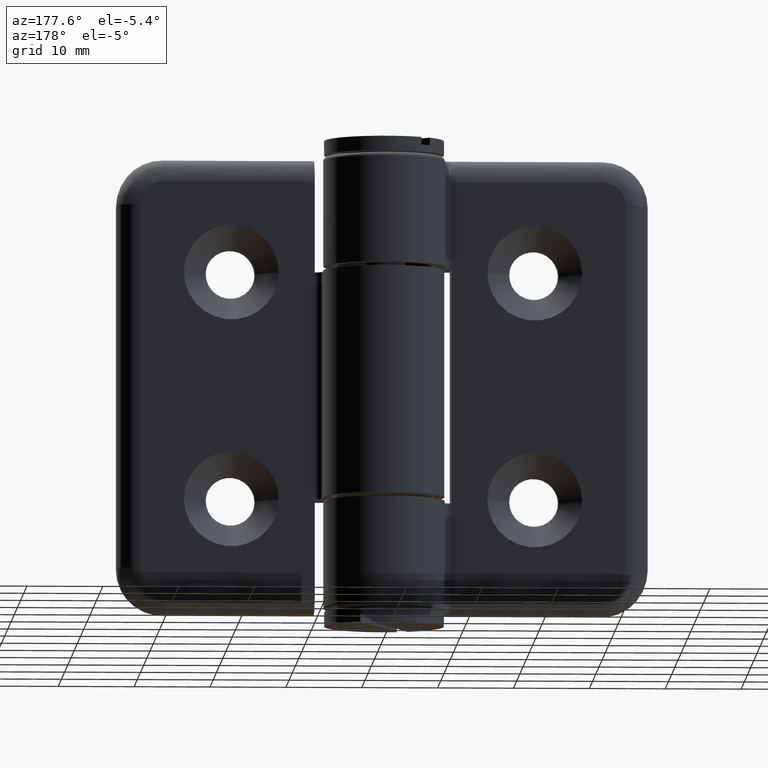
[diagram: clean part render]
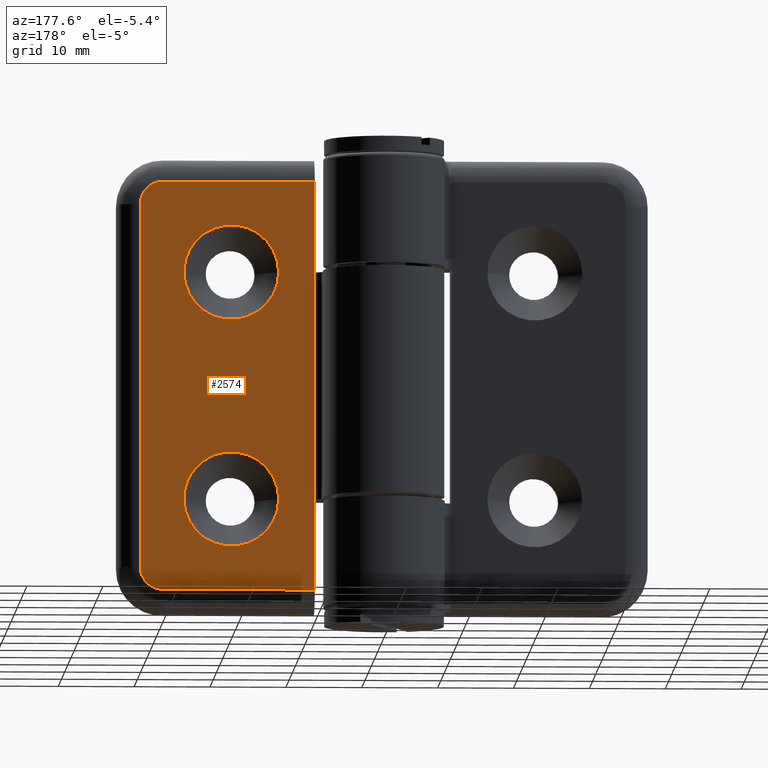
[diagram: same view with one face highlighted and labeled with its STEP entity id]
A machine part, auxiliary view. The second image highlights one B-rep face of the part: STEP entity #2574.
In plain terms, the highlighted planar face has unit normal (-0, 1, 0).
Its self-contained STEP definition (entity closure, byte-faithful):
#246=LINE('',#4516,#420);
#264=LINE('',#4579,#438);
#277=LINE('',#4661,#451);
#280=LINE('',#4667,#454);
#285=LINE('',#4687,#459);
#286=LINE('',#4688,#460);
#420=VECTOR('',#3449,30.);
#438=VECTOR('',#3513,20.);
#451=VECTOR('',#3596,48.);
#454=VECTOR('',#3603,20.);
#459=VECTOR('',#3620,12.);
#460=VECTOR('',#3621,12.);
#548=FACE_BOUND('',#964,.T.);
#549=FACE_BOUND('',#965,.T.);
#743=FACE_OUTER_BOUND('',#963,.T.);
#963=EDGE_LOOP('',(#2304,#2305,#2306,#2307,#2308,#2309,#2310,#2311));
#964=EDGE_LOOP('',(#2312));
#965=EDGE_LOOP('',(#2313));
#1076=CIRCLE('',#2822,6.25);
#1090=CIRCLE('',#2847,6.25);
#1093=CIRCLE('',#2855,3.);
#1095=CIRCLE('',#2857,3.);
#1244=VERTEX_POINT('',#4364);
#1249=VERTEX_POINT('',#4377);
#1308=VERTEX_POINT('',#4567);
#1311=VERTEX_POINT('',#4576);
#1312=VERTEX_POINT('',#4578);
#1322=VERTEX_POINT('',#4620);
#1325=VERTEX_POINT('',#4641);
#1326=VERTEX_POINT('',#4643);
#1327=VERTEX_POINT('',#4655);
#1329=VERTEX_POINT('',#4666);
#1591=EDGE_CURVE('',#1244,#1249,#246,.T.);
#1615=EDGE_CURVE('',#1308,#1308,#1076,.T.);
#1620=EDGE_CURVE('',#1311,#1312,#264,.T.);
#1643=EDGE_CURVE('',#1322,#1322,#1090,.T.);
#1648=EDGE_CURVE('',#1325,#1326,#1093,.T.);
#1650=EDGE_CURVE('',#1312,#1327,#1095,.T.);
#1653=EDGE_CURVE('',#1327,#1325,#277,.T.);
#1656=EDGE_CURVE('',#1326,#1329,#280,.T.);
#1664=EDGE_CURVE('',#1244,#1329,#285,.T.);
#1665=EDGE_CURVE('',#1311,#1249,#286,.T.);
#2304=ORIENTED_EDGE('',*,*,#1664,.T.);
#2305=ORIENTED_EDGE('',*,*,#1656,.F.);
#2306=ORIENTED_EDGE('',*,*,#1648,.F.);
#2307=ORIENTED_EDGE('',*,*,#1653,.F.);
#2308=ORIENTED_EDGE('',*,*,#1650,.F.);
#2309=ORIENTED_EDGE('',*,*,#1620,.F.);
#2310=ORIENTED_EDGE('',*,*,#1665,.T.);
#2311=ORIENTED_EDGE('',*,*,#1591,.F.);
#2312=ORIENTED_EDGE('',*,*,#1643,.T.);
#2313=ORIENTED_EDGE('',*,*,#1615,.T.);
#2416=PLANE('',#2868);
#2574=ADVANCED_FACE('',(#743,#548,#549),#2416,.T.);
#2822=AXIS2_PLACEMENT_3D('',#4568,#3502,#3503);
#2847=AXIS2_PLACEMENT_3D('',#4621,#3566,#3567);
#2855=AXIS2_PLACEMENT_3D('',#4644,#3584,#3585);
#2857=AXIS2_PLACEMENT_3D('',#4656,#3588,#3589);
#2868=AXIS2_PLACEMENT_3D('',#4686,#3618,#3619);
#3449=DIRECTION('',(0.,0.,1.));
#3502=DIRECTION('center_axis',(1.85037170770859E-16,-1.,0.));
#3503=DIRECTION('ref_axis',(1.,1.85037170770859E-16,0.));
#3513=DIRECTION('',(-1.,-1.85037170770859E-16,0.));
#3566=DIRECTION('center_axis',(1.85037170770859E-16,-1.,0.));
#3567=DIRECTION('ref_axis',(1.,1.85037170770859E-16,0.));
#3584=DIRECTION('center_axis',(1.85037170770859E-16,-1.,0.));
#3585=DIRECTION('ref_axis',(-0.707106781186547,-1.30841038223648E-16,-0.707106781186547));
#3588=DIRECTION('center_axis',(1.85037170770859E-16,-1.,0.));
#3589=DIRECTION('ref_axis',(-0.707106781186547,-1.30841038223648E-16,0.707106781186547));
#3596=DIRECTION('',(0.,0.,-1.));
#3603=DIRECTION('',(1.,1.85037170770859E-16,0.));
#3618=DIRECTION('center_axis',(-1.85037170770859E-16,1.,0.));
#3619=DIRECTION('ref_axis',(0.,0.,1.));
#3620=DIRECTION('',(0.,0.,-1.));
#3621=DIRECTION('',(5.9211894646675E-16,1.09564014614029E-31,-1.));
#4364=CARTESIAN_POINT('',(-9.,-3.,-15.));
#4377=CARTESIAN_POINT('',(-9.,-3.,15.));
#4516=CARTESIAN_POINT('',(-9.,-3.,0.));
#4567=CARTESIAN_POINT('',(-13.75,-3.00000000000001,15.));
#4568=CARTESIAN_POINT('Origin',(-20.,-3.00000000000001,15.));
#4576=CARTESIAN_POINT('',(-9.,-3.,27.));
#4578=CARTESIAN_POINT('',(-29.,-3.00000000000001,27.));
#4579=CARTESIAN_POINT('',(-23.760997035644,-3.00000000000001,27.));
#4620=CARTESIAN_POINT('',(-13.75,-3.00000000000001,-15.));
#4621=CARTESIAN_POINT('Origin',(-20.,-3.00000000000001,-15.));
#4641=CARTESIAN_POINT('',(-32.,-3.00000000000001,-24.));
#4643=CARTESIAN_POINT('',(-29.,-3.00000000000001,-27.));
#4644=CARTESIAN_POINT('Origin',(-29.,-3.00000000000001,-24.));
#4655=CARTESIAN_POINT('',(-32.,-3.00000000000001,24.));
#4656=CARTESIAN_POINT('Origin',(-29.,-3.00000000000001,24.));
#4661=CARTESIAN_POINT('',(-32.,-3.00000000000001,0.));
#4666=CARTESIAN_POINT('',(-9.,-3.,-27.));
#4667=CARTESIAN_POINT('',(-23.760997035644,-3.00000000000001,-27.));
#4686=CARTESIAN_POINT('Origin',(-35.,-3.00000000000001,0.));
#4687=CARTESIAN_POINT('',(-9.,-3.,-7.5));
#4688=CARTESIAN_POINT('',(-9.,-3.,15.));